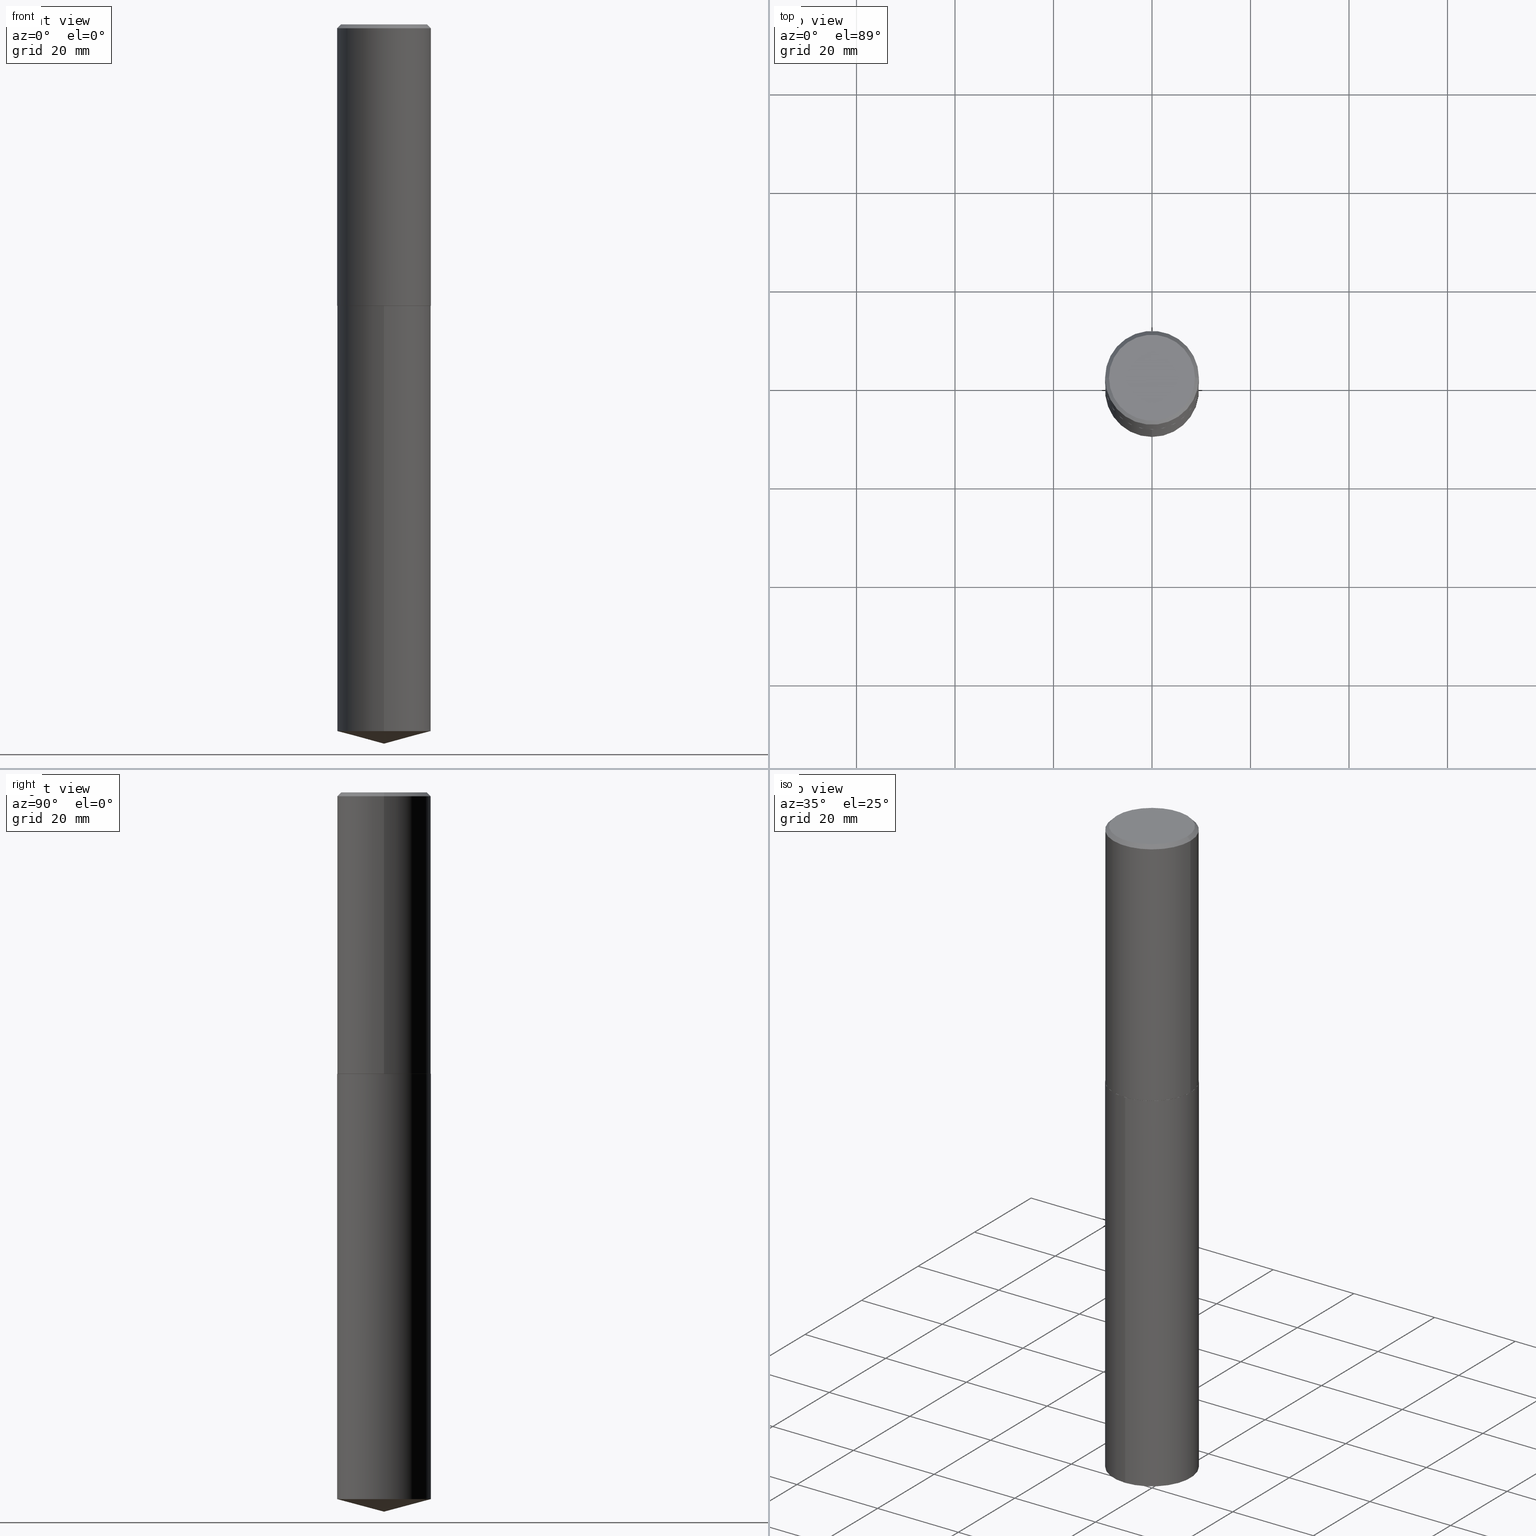
[diagram: canonical four-view strip — front | top / right | iso, engineering-drawing reading convention]
A machine part, canonical four-view strip (front | top / right | iso — engineering-drawing reading convention). The complete STEP part file that produces these views, byte-faithful:
ISO-10303-21;
HEADER;
FILE_DESCRIPTION (( 'STEP AP203' ),
    '1' );
FILE_NAME ('58103.STEP',
    '2024-04-23T02:04:10',
    ( '' ),
    ( '' ),
    'SwSTEP 2.0',
    'SolidWorks 2023',
    '' );
FILE_SCHEMA (( 'CONFIG_CONTROL_DESIGN' ));
ENDSEC;

DATA;
#1 = DIRECTION ( 'NONE',  ( 1.000000000000000000, -6.982962677686265922E-15, 4.876176775795935793E-29 ) ) ;
#2 = DIMENSIONAL_EXPONENTS ( 1.000000000000000000, 0.000000000000000000, 0.000000000000000000, 0.000000000000000000, 0.000000000000000000, 0.000000000000000000, 0.000000000000000000 ) ;
#3 = ORIENTED_EDGE ( 'NONE', *, *, #358, .F. ) ;
#4 = CARTESIAN_POINT ( 'NONE',  ( 1.406311884808789580E-28, -2.007363789431607861E-14, -5.750000000000000000 ) ) ;
#5 = CARTESIAN_POINT ( 'NONE',  ( 1.381670510912354609E-28, -1.972378335700664578E-14, -5.649519052838330779 ) ) ;
#6 = VERTEX_POINT ( 'NONE', #344 ) ;
#7 = VERTEX_POINT ( 'NONE', #148 ) ;
#8 = CIRCLE ( 'NONE', #365, 0.3750000000000002220 ) ;
#9 = APPROVAL_ROLE ( '' ) ;
#10 = EDGE_CURVE ( 'NONE', #7, #6, #211, .T. ) ;
#11 = FACE_OUTER_BOUND ( 'NONE', #235, .T. ) ;
#12 = CIRCLE ( 'NONE', #220, 0.3745000000000008877 ) ;
#13 = ORIENTED_EDGE ( 'NONE', *, *, #47, .F. ) ;
#14 = CC_DESIGN_PERSON_AND_ORGANIZATION_ASSIGNMENT ( #73, #163, ( #65 ) ) ;
#15 = LINE ( 'NONE', #44, #194 ) ;
#16 = DIRECTION ( 'NONE',  ( 1.000000000000000000, -6.982962677686269077E-15, 0.000000000000000000 ) ) ;
#17 = APPROVAL_ROLE ( '' ) ;
#18 = CARTESIAN_POINT ( 'NONE',  ( 5.502304813916556222E-29, -7.855833012397076871E-15, -2.249999999999999556 ) ) ;
#19 = APPROVAL_PERSON_ORGANIZATION ( #70, #175, #103 ) ;
#20 = EDGE_CURVE ( 'NONE', #212, #274, #8, .T. ) ;
#21 = CARTESIAN_POINT ( 'NONE',  ( -2.618611004132295191E-15, -0.3750000000000078826, -2.249999999999998224 ) ) ;
#22 = CARTESIAN_POINT ( 'NONE',  ( 5.501082079513463420E-29, -7.854087271727654578E-15, -2.249499999999999389 ) ) ;
#23 = MANIFOLD_SOLID_BREP ( 'Body-Move/Copy2[1]', #136 ) ;
#24 = CARTESIAN_POINT ( 'NONE',  ( 0.3750000000000002220, -1.047269827586000775E-14, -2.249499999999999389 ) ) ;
#25 = FACE_OUTER_BOUND ( 'NONE', #347, .T. ) ;
#26 = ORIENTED_EDGE ( 'NONE', *, *, #20, .F. ) ;
#27 = VECTOR ( 'NONE', #129, 39.37007874015748143 ) ;
#28 = AXIS2_PLACEMENT_3D ( 'NONE', #333, #332, #59 ) ;
#29 = FACE_OUTER_BOUND ( 'NONE', #364, .T. ) ;
#30 = CARTESIAN_POINT ( 'NONE',  ( 1.381670510912354609E-28, -1.972378335700664578E-14, -5.649519052838330779 ) ) ;
#31 = EDGE_CURVE ( 'NONE', #6, #7, #324, .T. ) ;
#32 = DATE_TIME_ROLE ( 'classification_date' ) ;
#33 = CIRCLE ( 'NONE', #268, 0.3750000000000000555 ) ;
#34 = APPROVAL_PERSON_ORGANIZATION ( #341, #53, #9 ) ;
#35 = ORIENTED_EDGE ( 'NONE', *, *, #10, .T. ) ;
#36 = EDGE_CURVE ( 'NONE', #95, #336, #40, .T. ) ;
#37 = ORIENTED_EDGE ( 'NONE', *, *, #288, .F. ) ;
#38 = ORIENTED_EDGE ( 'NONE', *, *, #285, .T. ) ;
#39 = MANIFOLD_SOLID_BREP ( 'Body-Move/Copy2[2]', #335 ) ;
#40 = CIRCLE ( 'NONE', #152, 0.3750000000000000555 ) ;
#41 = ADVANCED_FACE ( 'NONE', ( #78 ), #128, .F. ) ;
#42 = AXIS2_PLACEMENT_3D ( 'NONE', #48, #167, #16 ) ;
#43 = DIRECTION ( 'NONE',  ( -6.982962677686265133E-15, -1.000000000000000000, 3.510303681827577719E-15 ) ) ;
#44 = CARTESIAN_POINT ( 'NONE',  ( 0.3750000000000000555, -2.681795541003173437E-15, -0.03125000000000015959 ) ) ;
#45 = AXIS2_PLACEMENT_3D ( 'NONE', #279, #247, #118 ) ;
#46 = CARTESIAN_POINT ( 'NONE',  ( 0.3750000000000001110, -2.618611004132350411E-15, 1.828566290923476483E-29 ) ) ;
#47 = EDGE_CURVE ( 'NONE', #267, #179, #33, .T. ) ;
#48 = CARTESIAN_POINT ( 'NONE',  ( 5.501082079513463420E-29, -7.854087271727654578E-15, -2.249499999999999389 ) ) ;
#49 = ORIENTED_EDGE ( 'NONE', *, *, #158, .F. ) ;
#50 = DIRECTION ( 'NONE',  ( -2.445468806185136597E-29, 3.491481338843145583E-15, 1.000000000000000000 ) ) ;
#51 = LINE ( 'NONE', #261, #355 ) ;
#52 = DATE_AND_TIME ( #238, #195 ) ;
#53 = APPROVAL ( #316, 'UNSPECIFIED' ) ;
#54 = SECURITY_CLASSIFICATION_LEVEL ( 'unclassified' ) ;
#55 = FACE_OUTER_BOUND ( 'NONE', #159, .T. ) ;
#56 = ORIENTED_EDGE ( 'NONE', *, *, #74, .T. ) ;
#57 = CARTESIAN_POINT ( 'NONE',  ( -0.3750000000000000555, -1.317062772682874959E-15, -0.03125000000000015959 ) ) ;
#58 = AXIS2_PLACEMENT_3D ( 'NONE', #387, #113, #1 ) ;
#59 = DIRECTION ( 'NONE',  ( -6.982962677686265922E-15, -1.000000000000000000, 3.642463991552350169E-15 ) ) ;
#60 = ORIENTED_EDGE ( 'NONE', *, *, #164, .F. ) ;
#61 = ORIENTED_EDGE ( 'NONE', *, *, #158, .T. ) ;
#62 = DIRECTION ( 'NONE',  ( 1.000000000000000000, -6.982962677686269077E-15, 0.000000000000000000 ) ) ;
#63 = PERSON_AND_ORGANIZATION ( #286, #372 ) ;
#64 = CARTESIAN_POINT ( 'NONE',  ( -8.222722063682564182E-28, 1.173690316607380426E-13, 33.62007874015748143 ) ) ;
#65 = PRODUCT_DEFINITION ( 'UNKNOWN', '', #165, #82 ) ;
#66 = ADVANCED_FACE ( 'NONE', ( #242 ), #262, .T. ) ;
#67 = AXIS2_PLACEMENT_3D ( 'NONE', #64, #245, #147 ) ;
#68 = ORIENTED_EDGE ( 'NONE', *, *, #36, .T. ) ;
#69 = PERSON_AND_ORGANIZATION ( #286, #372 ) ;
#70 = PERSON_AND_ORGANIZATION ( #286, #372 ) ;
#71 = ORIENTED_EDGE ( 'NONE', *, *, #338, .F. ) ;
#72 = ORIENTED_EDGE ( 'NONE', *, *, #358, .T. ) ;
#73 = PERSON_AND_ORGANIZATION ( #286, #372 ) ;
#74 = EDGE_CURVE ( 'NONE', #305, #208, #258, .T. ) ;
#75 = DIRECTION ( 'NONE',  ( -1.000000000000000000, 6.982962677686265922E-15, 0.000000000000000000 ) ) ;
#76 = DIRECTION ( 'NONE',  ( 1.000000000000000000, 0.000000000000000000, 0.000000000000000000 ) ) ;
#77 = CIRCLE ( 'NONE', #325, 0.3750000000000000555 ) ;
#78 = FACE_OUTER_BOUND ( 'NONE', #141, .T. ) ;
#79 = EDGE_CURVE ( 'NONE', #212, #179, #322, .T. ) ;
#80 = AXIS2_PLACEMENT_3D ( 'NONE', #22, #168, #326 ) ;
#81 = CIRCLE ( 'NONE', #366, 0.3745000000000008877 ) ;
#82 = DESIGN_CONTEXT ( 'detailed design', #328, 'design' ) ;
#83 = CC_DESIGN_SECURITY_CLASSIFICATION ( #182, ( #165 ) ) ;
#84 = ORIENTED_EDGE ( 'NONE', *, *, #127, .T. ) ;
#85 = ORIENTED_EDGE ( 'NONE', *, *, #132, .F. ) ;
#86 = VERTEX_POINT ( 'NONE', #275 ) ;
#87 = COORDINATED_UNIVERSAL_TIME_OFFSET ( 5, 0, .BEHIND. ) ;
#88 = EDGE_LOOP ( 'NONE', ( #315, #138, #114 ) ) ;
#89 = CIRCLE ( 'NONE', #319, 0.3437500000000000555 ) ;
#90 = CARTESIAN_POINT ( 'NONE',  ( -0.3745000000000008877, -5.192201239801386138E-15, -2.249999999999999556 ) ) ;
#91 = DIRECTION ( 'NONE',  ( -2.445468806185136597E-29, 3.491481338843145583E-15, 1.000000000000000000 ) ) ;
#92 = MECHANICAL_CONTEXT ( 'NONE', #237, 'mechanical' ) ;
#93 = EDGE_CURVE ( 'NONE', #208, #267, #253, .T. ) ;
#94 = CC_DESIGN_APPROVAL ( #175, ( #65 ) ) ;
#95 = VERTEX_POINT ( 'NONE', #284 ) ;
#96 = CC_DESIGN_PERSON_AND_ORGANIZATION_ASSIGNMENT ( #116, #214, ( #165 ) ) ;
#97 = ORIENTED_EDGE ( 'NONE', *, *, #294, .T. ) ;
#98 = DIRECTION ( 'NONE',  ( 2.445757816319669833E-29, -3.491067459881058127E-15, -1.000000000000000000 ) ) ;
#99 = ADVANCED_FACE ( 'NONE', ( #256 ), #196, .F. ) ;
#100 = PRODUCT_DEFINITION_SHAPE ( 'NONE', 'NONE',  #65 ) ;
#101 = DIRECTION ( 'NONE',  ( -2.445757816319670673E-29, 3.491067459881057732E-15, 1.000000000000000000 ) ) ;
#102 = CARTESIAN_POINT ( 'NONE',  ( 0.000000000000000000, 0.000000000000000000, 0.000000000000000000 ) ) ;
#103 = APPROVAL_ROLE ( '' ) ;
#104 = AXIS2_PLACEMENT_3D ( 'NONE', #102, #228, #76 ) ;
#105 = LOCAL_TIME ( 22, 4, 10.00000000000000000, #225 ) ;
#106 = CARTESIAN_POINT ( 'NONE',  ( 5.502304813916556222E-29, -7.855833012397076871E-15, -2.249999999999999556 ) ) ;
#107 = FACE_OUTER_BOUND ( 'NONE', #184, .T. ) ;
#108 = DIRECTION ( 'NONE',  ( -2.445468806185136877E-29, 3.491481338843145188E-15, 1.000000000000000000 ) ) ;
#109 = COORDINATED_UNIVERSAL_TIME_OFFSET ( 5, 0, .BEHIND. ) ;
#110 = DIRECTION ( 'NONE',  ( 1.000000000000000000, -6.982962677686265922E-15, 0.000000000000000000 ) ) ;
#111 = VECTOR ( 'NONE', #177, 39.37007874015748854 ) ;
#112 = DIRECTION ( 'NONE',  ( -2.445468806185136597E-29, 3.491481338843145583E-15, 1.000000000000000000 ) ) ;
#113 = DIRECTION ( 'NONE',  ( -2.445468806185136597E-29, 3.491481338843145583E-15, 1.000000000000000000 ) ) ;
#114 = ORIENTED_EDGE ( 'NONE', *, *, #285, .F. ) ;
#115 = ORIENTED_EDGE ( 'NONE', *, *, #164, .T. ) ;
#116 = PERSON_AND_ORGANIZATION ( #286, #372 ) ;
#117 = PRODUCT ( '58103', '58103', '', ( #92 ) ) ;
#118 = DIRECTION ( 'NONE',  ( -6.982962677686265922E-15, -1.000000000000000000, 3.642463991552350169E-15 ) ) ;
#119 = DATE_TIME_ROLE ( 'creation_date' ) ;
#120 = DATE_AND_TIME ( #280, #241 ) ;
#121 = CARTESIAN_POINT ( 'NONE',  ( -4.679430540483313312E-47, 6.680986634214007402E-33, 1.913510623667735534E-18 ) ) ;
#122 = DIRECTION ( 'NONE',  ( -2.445757816319670673E-29, 3.491067459881057732E-15, 1.000000000000000000 ) ) ;
#123 = PERSON_AND_ORGANIZATION_ROLE ( 'classification_officer' ) ;
#124 = CARTESIAN_POINT ( 'NONE',  ( -9.358861080966626623E-47, 1.336197326842801480E-32, 3.827021247335471069E-18 ) ) ;
#125 = APPROVAL_PERSON_ORGANIZATION ( #69, #317, #17 ) ;
#126 = DIRECTION ( 'NONE',  ( 1.000000000000000000, -6.982962677686268288E-15, 0.000000000000000000 ) ) ;
#127 = EDGE_CURVE ( 'NONE', #274, #212, #360, .T. ) ;
#128 = PLANE ( 'NONE',  #204 ) ;
#129 = DIRECTION ( 'NONE',  ( -0.7071067811865453523, 2.468850131082234184E-15, -0.7071067811865496822 ) ) ;
#130 = DIRECTION ( 'NONE',  ( -2.445468806185136597E-29, 3.491481338843145583E-15, 1.000000000000000000 ) ) ;
#131 = DATE_AND_TIME ( #320, #105 ) ;
#132 = EDGE_CURVE ( 'NONE', #208, #305, #89, .T. ) ;
#133 = DIRECTION ( 'NONE',  ( -6.982962677686265922E-15, -1.000000000000000000, 2.913971193241880372E-15 ) ) ;
#134 = CONICAL_SURFACE ( 'NONE', #276, 146.9311341562576274, 1.308996938995751647 ) ;
#135 = CARTESIAN_POINT ( 'NONE',  ( 2.664535259100513353E-15, 0.3749999999999801825, -5.649519052838331667 ) ) ;
#136 = CLOSED_SHELL ( 'NONE', ( #321, #367, #176, #260, #99 ) ) ;
#137 = EDGE_CURVE ( 'NONE', #305, #179, #15, .T. ) ;
#138 = ORIENTED_EDGE ( 'NONE', *, *, #272, .T. ) ;
#139 = FACE_OUTER_BOUND ( 'NONE', #88, .T. ) ;
#140 = CARTESIAN_POINT ( 'NONE',  ( 7.642090019328590401E-31, -1.091087918388488418E-16, -0.03125000000000015959 ) ) ;
#141 = EDGE_LOOP ( 'NONE', ( #37, #3 ) ) ;
#142 = ADVANCED_FACE ( 'NONE', ( #107 ), #380, .T. ) ;
#143 = ORIENTED_EDGE ( 'NONE', *, *, #137, .F. ) ;
#144 = CIRCLE ( 'NONE', #378, 0.3750000000000000555 ) ;
#145 = CARTESIAN_POINT ( 'NONE',  ( -0.3750000000000002220, -5.189552012627277303E-15, -2.249499999999999389 ) ) ;
#146 = EDGE_LOOP ( 'NONE', ( #143, #85, #345, #289 ) ) ;
#147 = DIRECTION ( 'NONE',  ( -6.982962677686265133E-15, -1.000000000000000000, 3.510303681827577719E-15 ) ) ;
#148 = CARTESIAN_POINT ( 'NONE',  ( -2.618611004132295191E-15, -0.3750000000000078826, -2.249999999999998224 ) ) ;
#149 = DIRECTION ( 'NONE',  ( 2.438088387897960049E-29, -3.491481338843145188E-15, -1.000000000000000000 ) ) ;
#150 = PERSON_AND_ORGANIZATION ( #286, #372 ) ;
#151 = APPLICATION_PROTOCOL_DEFINITION ( 'international standard', 'config_control_design', 1994, #237 ) ;
#152 = AXIS2_PLACEMENT_3D ( 'NONE', #5, #122, #133 ) ;
#153 = COORDINATED_UNIVERSAL_TIME_OFFSET ( 5, 0, .BEHIND. ) ;
#154 = CONICAL_SURFACE ( 'NONE', #298, 0.3750000000000000555, 0.7853981633974452814 ) ;
#155 = PLANE ( 'NONE',  #188 ) ;
#156 = DIRECTION ( 'NONE',  ( -6.982962677686265922E-15, -1.000000000000000000, 3.642463991552350169E-15 ) ) ;
#157 = ORIENTED_EDGE ( 'NONE', *, *, #169, .F. ) ;
#158 = EDGE_CURVE ( 'NONE', #192, #274, #171, .T. ) ;
#159 = EDGE_LOOP ( 'NONE', ( #68, #356, #308, #60 ) ) ;
#160 = AXIS2_PLACEMENT_3D ( 'NONE', #124, #353, #231 ) ;
#161 = AXIS2_PLACEMENT_3D ( 'NONE', #162, #348, #75 ) ;
#162 = CARTESIAN_POINT ( 'NONE',  ( 7.642090019328590401E-31, -1.091087918388488418E-16, -0.03125000000000015959 ) ) ;
#163 = PERSON_AND_ORGANIZATION_ROLE ( 'creator' ) ;
#164 = EDGE_CURVE ( 'NONE', #95, #7, #232, .T. ) ;
#165 = PRODUCT_DEFINITION_FORMATION_WITH_SPECIFIED_SOURCE ( 'ANY', '', #117, .NOT_KNOWN. ) ;
#166 = ADVANCED_BREP_SHAPE_REPRESENTATION ( '58103', ( #23, #39, #104 ), #350 ) ;
#167 = DIRECTION ( 'NONE',  ( -2.445468806185136597E-29, 3.491481338843145583E-15, 1.000000000000000000 ) ) ;
#168 = DIRECTION ( 'NONE',  ( -2.445468806185136597E-29, 3.491481338843145583E-15, 1.000000000000000000 ) ) ;
#169 = EDGE_CURVE ( 'NONE', #274, #267, #51, .T. ) ;
#170 = DIRECTION ( 'NONE',  ( -2.445757816319670673E-29, 3.491067459881058127E-15, 1.000000000000000000 ) ) ;
#171 = LINE ( 'NONE', #299, #172 ) ;
#172 = VECTOR ( 'NONE', #236, 39.37007874015748854 ) ;
#173 = APPROVAL_DATE_TIME ( #52, #317 ) ;
#174 = DIRECTION ( 'NONE',  ( 1.000000000000000000, -6.982962677686268288E-15, 0.000000000000000000 ) ) ;
#175 = APPROVAL ( #368, 'UNSPECIFIED' ) ;
#176 = ADVANCED_FACE ( 'NONE', ( #139 ), #239, .T. ) ;
#177 = DIRECTION ( 'NONE',  ( 0.7071067811859679253, -2.468850131076186381E-15, 0.7071067811871269981 ) ) ;
#178 = DIRECTION ( 'NONE',  ( -2.445757816319670673E-29, 3.491067459881057732E-15, 1.000000000000000000 ) ) ;
#179 = VERTEX_POINT ( 'NONE', #311 ) ;
#180 = DIRECTION ( 'NONE',  ( -6.745023994389845444E-15, -0.9659258262890685343, 0.2588190451025198513 ) ) ;
#181 = ORIENTED_EDGE ( 'NONE', *, *, #93, .F. ) ;
#182 = SECURITY_CLASSIFICATION ( '', '', #54 ) ;
#183 = LINE ( 'NONE', #185, #386 ) ;
#184 = EDGE_LOOP ( 'NONE', ( #157, #84, #318, #13 ) ) ;
#185 = CARTESIAN_POINT ( 'NONE',  ( 1.406180689823270541E-28, -2.007550034964547847E-14, -5.750000000000000000 ) ) ;
#186 = CC_DESIGN_PERSON_AND_ORGANIZATION_ASSIGNMENT ( #150, #123, ( #182 ) ) ;
#187 = PERSON_AND_ORGANIZATION_ROLE ( 'design_owner' ) ;
#188 = AXIS2_PLACEMENT_3D ( 'NONE', #121, #149, #246 ) ;
#189 = ORIENTED_EDGE ( 'NONE', *, *, #79, .F. ) ;
#190 = ADVANCED_FACE ( 'NONE', ( #250 ), #155, .F. ) ;
#191 = ORIENTED_EDGE ( 'NONE', *, *, #31, .F. ) ;
#192 = VERTEX_POINT ( 'NONE', #90 ) ;
#193 = CARTESIAN_POINT ( 'NONE',  ( 5.501082079513463420E-29, -7.854087271727654578E-15, -2.249499999999999389 ) ) ;
#194 = VECTOR ( 'NONE', #383, 39.37007874015748143 ) ;
#195 = LOCAL_TIME ( 22, 4, 10.00000000000000000, #109 ) ;
#196 = PLANE ( 'NONE',  #377 ) ;
#197 = EDGE_CURVE ( 'NONE', #86, #336, #278, .T. ) ;
#198 = CALENDAR_DATE ( 2024, 22, 4 ) ;
#199 = VECTOR ( 'NONE', #290, 39.37007874015748143 ) ;
#200 = VECTOR ( 'NONE', #170, 39.37007874015748143 ) ;
#201 = PRODUCT_RELATED_PRODUCT_CATEGORY ( 'detail', '', ( #117 ) ) ;
#202 = EDGE_CURVE ( 'NONE', #369, #212, #206, .T. ) ;
#203 = CARTESIAN_POINT ( 'NONE',  ( 5.502304813916556222E-29, -7.855833012397076871E-15, -2.249999999999999556 ) ) ;
#204 = AXIS2_PLACEMENT_3D ( 'NONE', #292, #376, #295 ) ;
#205 = CC_DESIGN_APPROVAL ( #317, ( #165 ) ) ;
#206 = LINE ( 'NONE', #329, #111 ) ;
#207 = EDGE_LOOP ( 'NONE', ( #269, #303, #97, #181 ) ) ;
#208 = VERTEX_POINT ( 'NONE', #301 ) ;
#209 = CYLINDRICAL_SURFACE ( 'NONE', #314, 0.3750000000000000555 ) ;
#210 = ORIENTED_EDGE ( 'NONE', *, *, #127, .F. ) ;
#211 = CIRCLE ( 'NONE', #45, 0.3750000000000000555 ) ;
#212 = VERTEX_POINT ( 'NONE', #24 ) ;
#213 = CYLINDRICAL_SURFACE ( 'NONE', #28, 0.3750000000000000555 ) ;
#214 = PERSON_AND_ORGANIZATION_ROLE ( 'design_supplier' ) ;
#215 =( NAMED_UNIT ( * ) SI_UNIT ( $, .STERADIAN. ) SOLID_ANGLE_UNIT ( ) );
#216 = UNCERTAINTY_MEASURE_WITH_UNIT (LENGTH_MEASURE( 1.000000000000000082E-05 ), #343, 'distance_accuracy_value', 'NONE');
#217 = APPROVAL_DATE_TIME ( #120, #53 ) ;
#218 = ADVANCED_FACE ( 'NONE', ( #357 ), #337, .T. ) ;
#219 =( LENGTH_UNIT ( ) NAMED_UNIT ( * ) SI_UNIT ( $, .METRE. ) );
#220 = AXIS2_PLACEMENT_3D ( 'NONE', #18, #371, #126 ) ;
#221 = ORIENTED_EDGE ( 'NONE', *, *, #272, .F. ) ;
#222 = ORIENTED_EDGE ( 'NONE', *, *, #197, .T. ) ;
#223 = DATE_AND_TIME ( #340, #304 ) ;
#224 = ORIENTED_EDGE ( 'NONE', *, *, #288, .T. ) ;
#225 = COORDINATED_UNIVERSAL_TIME_OFFSET ( 5, 0, .BEHIND. ) ;
#226 = ORIENTED_EDGE ( 'NONE', *, *, #31, .T. ) ;
#227 = CONICAL_SURFACE ( 'NONE', #161, 0.3750000000000000555, 0.7853981633974452814 ) ;
#228 = DIRECTION ( 'NONE',  ( 0.000000000000000000, 0.000000000000000000, 1.000000000000000000 ) ) ;
#229 = COORDINATED_UNIVERSAL_TIME_OFFSET ( 5, 0, .BEHIND. ) ;
#230 = CARTESIAN_POINT ( 'NONE',  ( 0.3745000000000008877, -1.047095253519059019E-14, -2.249999999999999556 ) ) ;
#231 = DIRECTION ( 'NONE',  ( 1.000000000000000000, -6.982962677686265922E-15, 4.876173381029099482E-29 ) ) ;
#232 = LINE ( 'NONE', #21, #313 ) ;
#233 = AXIS2_PLACEMENT_3D ( 'NONE', #193, #130, #370 ) ;
#234 = CARTESIAN_POINT ( 'NONE',  ( 2.664535259100430128E-15, 0.3749999999999921729, -2.250000000000001332 ) ) ;
#235 = EDGE_LOOP ( 'NONE', ( #221, #222, #264 ) ) ;
#236 = DIRECTION ( 'NONE',  ( -0.7071067811859679253, 7.493145998868258946E-15, 0.7071067811871269981 ) ) ;
#237 = APPLICATION_CONTEXT ( 'configuration controlled 3d designs of mechanical parts and assemblies' ) ;
#238 = CALENDAR_DATE ( 2024, 22, 4 ) ;
#239 = CONICAL_SURFACE ( 'NONE', #67, 146.9311341562576274, 1.308996938995751647 ) ;
#240 = CARTESIAN_POINT ( 'NONE',  ( 0.3437500000000000555, -2.520045863868569100E-15, 3.827021247352675786E-18 ) ) ;
#241 = LOCAL_TIME ( 22, 4, 10.00000000000000000, #87 ) ;
#242 = FACE_OUTER_BOUND ( 'NONE', #384, .T. ) ;
#243 = EDGE_LOOP ( 'NONE', ( #334, #56 ) ) ;
#244 = CC_DESIGN_PERSON_AND_ORGANIZATION_ASSIGNMENT ( #312, #390, ( #165 ) ) ;
#245 = DIRECTION ( 'NONE',  ( -2.445757816319670673E-29, 3.491067459881057732E-15, 1.000000000000000000 ) ) ;
#246 = DIRECTION ( 'NONE',  ( -1.000000000000000000, 6.982962677686265922E-15, -4.876176775795935793E-29 ) ) ;
#247 = DIRECTION ( 'NONE',  ( -2.445757816319670673E-29, 3.491067459881057732E-15, 1.000000000000000000 ) ) ;
#248 = CARTESIAN_POINT ( 'NONE',  ( 5.502304813916556222E-29, -7.855833012397076871E-15, -2.249999999999999556 ) ) ;
#249 = SHAPE_DEFINITION_REPRESENTATION ( #100, #166 ) ;
#250 = FACE_OUTER_BOUND ( 'NONE', #243, .T. ) ;
#251 = CC_DESIGN_PERSON_AND_ORGANIZATION_ASSIGNMENT ( #63, #187, ( #117 ) ) ;
#252 = LENGTH_MEASURE_WITH_UNIT ( LENGTH_MEASURE( 0.02539999999999999897 ), #219 );
#253 = LINE ( 'NONE', #363, #27 ) ;
#254 = ORIENTED_EDGE ( 'NONE', *, *, #202, .T. ) ;
#255 = CARTESIAN_POINT ( 'NONE',  ( -8.222722063682564182E-28, 1.173690316607380426E-13, 33.62007874015748143 ) ) ;
#256 = FACE_OUTER_BOUND ( 'NONE', #388, .T. ) ;
#257 = APPROVAL_DATE_TIME ( #131, #175 ) ;
#258 = CIRCLE ( 'NONE', #160, 0.3437500000000000555 ) ;
#259 = CC_DESIGN_APPROVAL ( #53, ( #182 ) ) ;
#260 = ADVANCED_FACE ( 'NONE', ( #29 ), #213, .T. ) ;
#261 = CARTESIAN_POINT ( 'NONE',  ( -0.3750000000000001110, 2.664535259100376486E-15, -1.844600658845590159E-29 ) ) ;
#262 = CONICAL_SURFACE ( 'NONE', #233, 0.3750000000000002220, 0.7853981633966287124 ) ;
#263 = DIRECTION ( 'NONE',  ( 1.000000000000000000, -6.982962677686265922E-15, 4.876176775795935793E-29 ) ) ;
#264 = ORIENTED_EDGE ( 'NONE', *, *, #36, .F. ) ;
#265 = DIRECTION ( 'NONE',  ( 1.000000000000000000, -6.982962677686265922E-15, 4.876173381029099482E-29 ) ) ;
#266 = DIRECTION ( 'NONE',  ( 1.000000000000000000, -6.982962677686265922E-15, 0.000000000000000000 ) ) ;
#267 = VERTEX_POINT ( 'NONE', #57 ) ;
#268 = AXIS2_PLACEMENT_3D ( 'NONE', #381, #112, #110 ) ;
#269 = ORIENTED_EDGE ( 'NONE', *, *, #74, .F. ) ;
#270 = FACE_OUTER_BOUND ( 'NONE', #146, .T. ) ;
#271 = ORIENTED_EDGE ( 'NONE', *, *, #20, .T. ) ;
#272 = EDGE_CURVE ( 'NONE', #86, #95, #183, .T. ) ;
#273 = DIRECTION ( 'NONE',  ( -2.445757816319670673E-29, 3.491067459881057732E-15, 1.000000000000000000 ) ) ;
#274 = VERTEX_POINT ( 'NONE', #145 ) ;
#275 = CARTESIAN_POINT ( 'NONE',  ( 1.406310744383810567E-28, -2.007363789431608176E-14, -5.750000000000000000 ) ) ;
#276 = AXIS2_PLACEMENT_3D ( 'NONE', #255, #101, #43 ) ;
#277 = ADVANCED_FACE ( 'NONE', ( #270 ), #154, .T. ) ;
#278 = LINE ( 'NONE', #4, #287 ) ;
#279 = CARTESIAN_POINT ( 'NONE',  ( 5.502304813916556222E-29, -7.855833012397076871E-15, -2.249999999999999556 ) ) ;
#280 = CALENDAR_DATE ( 2024, 22, 4 ) ;
#281 = ORIENTED_EDGE ( 'NONE', *, *, #294, .F. ) ;
#282 = DATE_AND_TIME ( #198, #327 ) ;
#283 = CONICAL_SURFACE ( 'NONE', #42, 0.3750000000000002220, 0.7853981633966287124 ) ;
#284 = CARTESIAN_POINT ( 'NONE',  ( -2.618611004132210783E-15, -0.3750000000000196509, -5.649519052838329003 ) ) ;
#285 = EDGE_CURVE ( 'NONE', #336, #95, #144, .T. ) ;
#286 = PERSON ( 'UNSPECIFIED', 'UNSPECIFIED', 'UNSPECIFIED', ('UNSPECIFIED'), ('UNSPECIFIED'), ('UNSPECIFIED') ) ;
#287 = VECTOR ( 'NONE', #362, 39.37007874015748854 ) ;
#288 = EDGE_CURVE ( 'NONE', #369, #192, #81, .T. ) ;
#289 = ORIENTED_EDGE ( 'NONE', *, *, #47, .T. ) ;
#290 = DIRECTION ( 'NONE',  ( -2.445468806185136877E-29, 3.491481338843145188E-15, 1.000000000000000000 ) ) ;
#291 = CARTESIAN_POINT ( 'NONE',  ( -9.358861080966626623E-47, 1.336197326842801480E-32, 3.827021247335471069E-18 ) ) ;
#292 = CARTESIAN_POINT ( 'NONE',  ( 5.502304813916556222E-29, -7.855833012397076871E-15, -2.249999999999999556 ) ) ;
#293 = DIRECTION ( 'NONE',  ( -2.445468806185136597E-29, 3.491481338843145583E-15, 1.000000000000000000 ) ) ;
#294 = EDGE_CURVE ( 'NONE', #179, #267, #77, .T. ) ;
#295 = DIRECTION ( 'NONE',  ( 1.000000000000000000, -6.982962677686265922E-15, 4.876176775795935793E-29 ) ) ;
#296 = ORIENTED_EDGE ( 'NONE', *, *, #169, .T. ) ;
#297 = AXIS2_PLACEMENT_3D ( 'NONE', #248, #339, #156 ) ;
#298 = AXIS2_PLACEMENT_3D ( 'NONE', #309, #389, #306 ) ;
#299 = CARTESIAN_POINT ( 'NONE',  ( -0.3750000000000002220, -5.189552012627277303E-15, -2.249499999999999389 ) ) ;
#300 = DIRECTION ( 'NONE',  ( 6.982962677686265922E-15, 1.000000000000000000, -3.491067459881058127E-15 ) ) ;
#301 = CARTESIAN_POINT ( 'NONE',  ( -0.3437500000000000555, 2.454947816374077943E-15, 3.827021247318493611E-18 ) ) ;
#302 = DIRECTION ( 'NONE',  ( -6.982962677686265922E-15, -1.000000000000000000, 3.642463991552350169E-15 ) ) ;
#303 = ORIENTED_EDGE ( 'NONE', *, *, #137, .T. ) ;
#304 = LOCAL_TIME ( 22, 4, 10.00000000000000000, #229 ) ;
#305 = VERTEX_POINT ( 'NONE', #240 ) ;
#306 = DIRECTION ( 'NONE',  ( -1.000000000000000000, 6.982962677686265922E-15, 0.000000000000000000 ) ) ;
#307 = EDGE_LOOP ( 'NONE', ( #271, #296, #281, #189 ) ) ;
#308 = ORIENTED_EDGE ( 'NONE', *, *, #10, .F. ) ;
#309 = CARTESIAN_POINT ( 'NONE',  ( 7.642090019328590401E-31, -1.091087918388488418E-16, -0.03125000000000015959 ) ) ;
#310 = APPLICATION_PROTOCOL_DEFINITION ( 'international standard', 'config_control_design', 1994, #328 ) ;
#311 = CARTESIAN_POINT ( 'NONE',  ( 0.3750000000000000555, -2.727719795971198723E-15, -0.03125000000000015959 ) ) ;
#312 = PERSON_AND_ORGANIZATION ( #286, #372 ) ;
#313 = VECTOR ( 'NONE', #373, 39.37007874015748143 ) ;
#314 = AXIS2_PLACEMENT_3D ( 'NONE', #203, #178, #302 ) ;
#315 = ORIENTED_EDGE ( 'NONE', *, *, #197, .F. ) ;
#316 = APPROVAL_STATUS ( 'not_yet_approved' ) ;
#317 = APPROVAL ( #351, 'UNSPECIFIED' ) ;
#318 = ORIENTED_EDGE ( 'NONE', *, *, #79, .T. ) ;
#319 = AXIS2_PLACEMENT_3D ( 'NONE', #291, #293, #265 ) ;
#320 = CALENDAR_DATE ( 2024, 22, 4 ) ;
#321 = ADVANCED_FACE ( 'NONE', ( #55 ), #209, .T. ) ;
#322 = LINE ( 'NONE', #46, #199 ) ;
#323 = DIRECTION ( 'NONE',  ( -2.445468806185136597E-29, 3.491481338843145583E-15, 1.000000000000000000 ) ) ;
#324 = CIRCLE ( 'NONE', #297, 0.3750000000000000555 ) ;
#325 = AXIS2_PLACEMENT_3D ( 'NONE', #140, #330, #266 ) ;
#326 = DIRECTION ( 'NONE',  ( 1.000000000000000000, -6.982962677686269077E-15, 0.000000000000000000 ) ) ;
#327 = LOCAL_TIME ( 22, 4, 10.00000000000000000, #153 ) ;
#328 = APPLICATION_CONTEXT ( 'configuration controlled 3d designs of mechanical parts and assemblies' ) ;
#329 = CARTESIAN_POINT ( 'NONE',  ( 0.3750000000000002220, -1.047269827586000775E-14, -2.249499999999999389 ) ) ;
#330 = DIRECTION ( 'NONE',  ( -2.445468806185136597E-29, 3.491481338843145583E-15, 1.000000000000000000 ) ) ;
#331 = ADVANCED_FACE ( 'NONE', ( #25 ), #283, .T. ) ;
#332 = DIRECTION ( 'NONE',  ( -2.445757816319670673E-29, 3.491067459881057732E-15, 1.000000000000000000 ) ) ;
#333 = CARTESIAN_POINT ( 'NONE',  ( 5.502304813916556222E-29, -7.855833012397076871E-15, -2.249999999999999556 ) ) ;
#334 = ORIENTED_EDGE ( 'NONE', *, *, #132, .T. ) ;
#335 = CLOSED_SHELL ( 'NONE', ( #375, #218, #331, #41, #66, #142, #277, #190 ) ) ;
#336 = VERTEX_POINT ( 'NONE', #135 ) ;
#337 = CYLINDRICAL_SURFACE ( 'NONE', #58, 0.3750000000000001110 ) ;
#338 = EDGE_CURVE ( 'NONE', #336, #6, #374, .T. ) ;
#339 = DIRECTION ( 'NONE',  ( -2.445757816319670673E-29, 3.491067459881057732E-15, 1.000000000000000000 ) ) ;
#340 = CALENDAR_DATE ( 2024, 22, 4 ) ;
#341 = PERSON_AND_ORGANIZATION ( #286, #372 ) ;
#342 = CC_DESIGN_DATE_AND_TIME_ASSIGNMENT ( #223, #119, ( #65 ) ) ;
#343 =( CONVERSION_BASED_UNIT ( 'INCH', #252 ) LENGTH_UNIT ( ) NAMED_UNIT ( #2 ) );
#344 = CARTESIAN_POINT ( 'NONE',  ( 2.664535259100514142E-15, 0.3749999999999921729, -2.250000000000001332 ) ) ;
#345 = ORIENTED_EDGE ( 'NONE', *, *, #93, .T. ) ;
#346 = FACE_OUTER_BOUND ( 'NONE', #207, .T. ) ;
#347 = EDGE_LOOP ( 'NONE', ( #224, #61, #26, #359 ) ) ;
#348 = DIRECTION ( 'NONE',  ( 2.445468806185136597E-29, -3.491481338843145583E-15, -1.000000000000000000 ) ) ;
#349 = AXIS2_PLACEMENT_3D ( 'NONE', #379, #323, #263 ) ;
#350 =( GEOMETRIC_REPRESENTATION_CONTEXT ( 3 ) GLOBAL_UNCERTAINTY_ASSIGNED_CONTEXT ( ( #216 ) ) GLOBAL_UNIT_ASSIGNED_CONTEXT ( ( #343, #382, #215 ) ) REPRESENTATION_CONTEXT ( 'NONE', 'WORKASPACE' ) );
#351 = APPROVAL_STATUS ( 'not_yet_approved' ) ;
#352 = DIRECTION ( 'NONE',  ( -6.982962677686265922E-15, -1.000000000000000000, 2.913971193241880372E-15 ) ) ;
#353 = DIRECTION ( 'NONE',  ( -2.445468806185136597E-29, 3.491481338843145583E-15, 1.000000000000000000 ) ) ;
#354 = CARTESIAN_POINT ( 'NONE',  ( 5.502304813916556222E-29, -7.855833012397076871E-15, -2.249999999999999556 ) ) ;
#355 = VECTOR ( 'NONE', #108, 39.37007874015748143 ) ;
#356 = ORIENTED_EDGE ( 'NONE', *, *, #338, .T. ) ;
#357 = FACE_OUTER_BOUND ( 'NONE', #307, .T. ) ;
#358 = EDGE_CURVE ( 'NONE', #192, #369, #12, .T. ) ;
#359 = ORIENTED_EDGE ( 'NONE', *, *, #202, .F. ) ;
#360 = CIRCLE ( 'NONE', #80, 0.3750000000000002220 ) ;
#361 = CARTESIAN_POINT ( 'NONE',  ( 5.501082079513463420E-29, -7.854087271727654578E-15, -2.249499999999999389 ) ) ;
#362 = DIRECTION ( 'NONE',  ( 6.863315791527699781E-15, 0.9659258262890704216, 0.2588190451025130789 ) ) ;
#363 = CARTESIAN_POINT ( 'NONE',  ( -0.3750000000000000555, 2.509502212293501310E-15, -0.03125000000000015959 ) ) ;
#364 = EDGE_LOOP ( 'NONE', ( #71, #38, #115, #191 ) ) ;
#365 = AXIS2_PLACEMENT_3D ( 'NONE', #361, #91, #62 ) ;
#366 = AXIS2_PLACEMENT_3D ( 'NONE', #354, #50, #174 ) ;
#367 = ADVANCED_FACE ( 'NONE', ( #11 ), #134, .T. ) ;
#368 = APPROVAL_STATUS ( 'not_yet_approved' ) ;
#369 = VERTEX_POINT ( 'NONE', #230 ) ;
#370 = DIRECTION ( 'NONE',  ( 1.000000000000000000, -6.982962677686269077E-15, 0.000000000000000000 ) ) ;
#371 = DIRECTION ( 'NONE',  ( -2.445468806185136597E-29, 3.491481338843145583E-15, 1.000000000000000000 ) ) ;
#372 = ORGANIZATION ( 'UNSPECIFIED', 'UNSPECIFIED', '' ) ;
#373 = DIRECTION ( 'NONE',  ( -2.445757816319670673E-29, 3.491067459881058127E-15, 1.000000000000000000 ) ) ;
#374 = LINE ( 'NONE', #234, #200 ) ;
#375 = ADVANCED_FACE ( 'NONE', ( #346 ), #227, .T. ) ;
#376 = DIRECTION ( 'NONE',  ( -2.438088387897960049E-29, 3.491481338843145188E-15, 1.000000000000000000 ) ) ;
#377 = AXIS2_PLACEMENT_3D ( 'NONE', #106, #98, #300 ) ;
#378 = AXIS2_PLACEMENT_3D ( 'NONE', #30, #273, #352 ) ;
#379 = CARTESIAN_POINT ( 'NONE',  ( 0.000000000000000000, 0.000000000000000000, 0.000000000000000000 ) ) ;
#380 = CYLINDRICAL_SURFACE ( 'NONE', #349, 0.3750000000000001110 ) ;
#381 = CARTESIAN_POINT ( 'NONE',  ( 7.642090019328590401E-31, -1.091087918388488418E-16, -0.03125000000000015959 ) ) ;
#382 =( NAMED_UNIT ( * ) PLANE_ANGLE_UNIT ( ) SI_UNIT ( $, .RADIAN. ) );
#383 = DIRECTION ( 'NONE',  ( 0.7071067811865453523, -7.319954787623248157E-15, -0.7071067811865496822 ) ) ;
#384 = EDGE_LOOP ( 'NONE', ( #49, #72, #254, #210 ) ) ;
#385 = CC_DESIGN_DATE_AND_TIME_ASSIGNMENT ( #282, #32, ( #182 ) ) ;
#386 = VECTOR ( 'NONE', #180, 39.37007874015748143 ) ;
#387 = CARTESIAN_POINT ( 'NONE',  ( 0.000000000000000000, 0.000000000000000000, 0.000000000000000000 ) ) ;
#388 = EDGE_LOOP ( 'NONE', ( #35, #226 ) ) ;
#389 = DIRECTION ( 'NONE',  ( 2.445468806185136597E-29, -3.491481338843145583E-15, -1.000000000000000000 ) ) ;
#390 = PERSON_AND_ORGANIZATION_ROLE ( 'creator' ) ;
ENDSEC;
END-ISO-10303-21;
